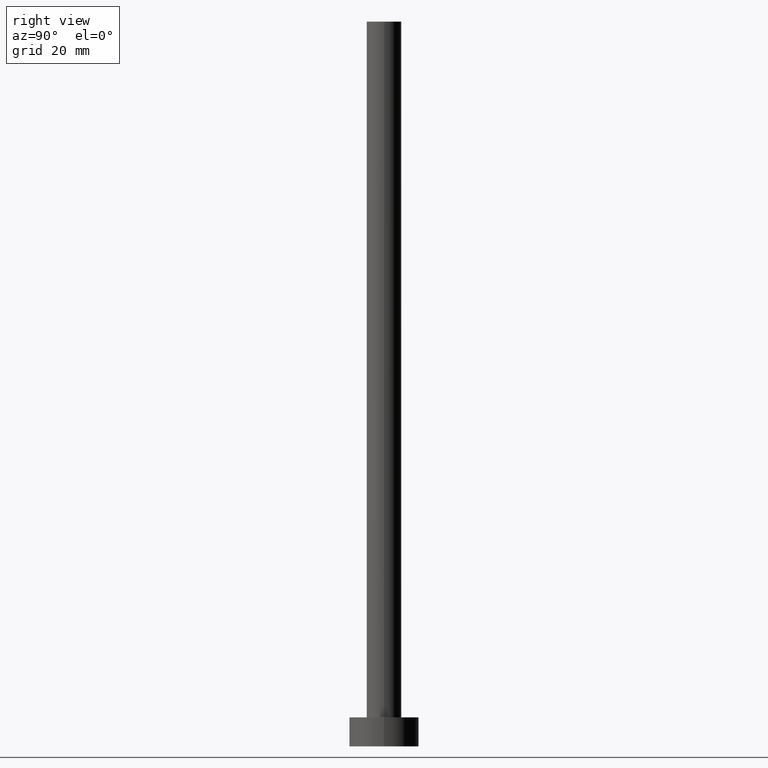
[diagram: clean part render]
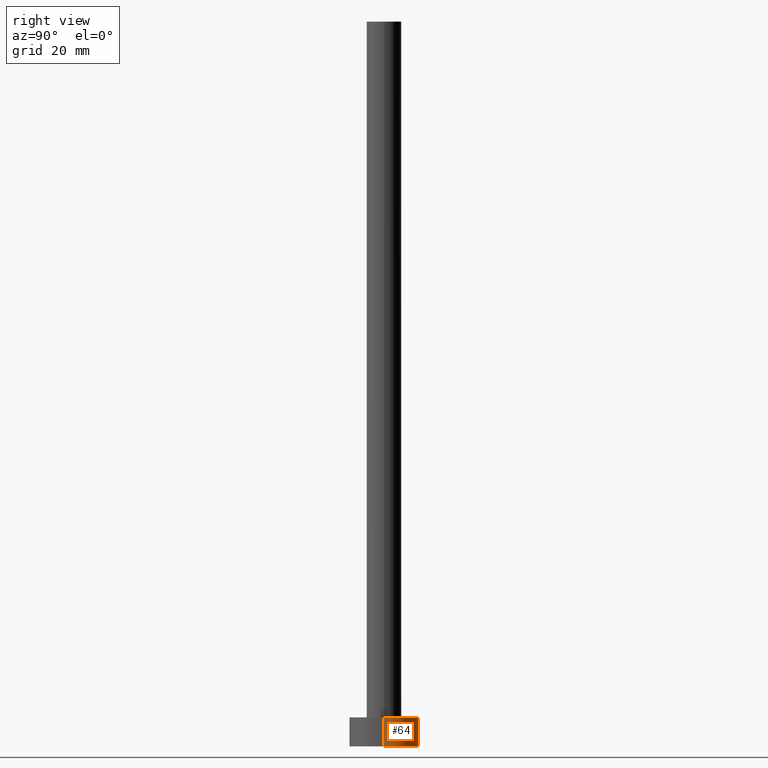
[diagram: same view with one face highlighted and labeled with its STEP entity id]
A machine part, right view. The second image highlights one B-rep face of the part: STEP entity #64.
In plain terms, the highlighted cylindrical surface (edge-blend (fillet) strip) has radius 6 mm, axis along (-0, -0, -1).
Its self-contained STEP definition (entity closure, byte-faithful):
#5 = DIRECTION ( 'NONE',  ( -0.000000000000000000, -0.000000000000000000, -1.000000000000000000 ) ) ;
#8 = CARTESIAN_POINT ( 'NONE',  ( 0.000000000000000000, 0.000000000000000000, 5.000000000000000000 ) ) ;
#31 = LINE ( 'NONE', #102, #188 ) ;
#33 = AXIS2_PLACEMENT_3D ( 'NONE', #8, #5, #84 ) ;
#34 = DIRECTION ( 'NONE',  ( 1.000000000000000000, 0.000000000000000000, 0.000000000000000000 ) ) ;
#56 = CARTESIAN_POINT ( 'NONE',  ( -6.000000000000000888, 0.000000000000000000, 5.000000000000000000 ) ) ;
#64 = ADVANCED_FACE ( 'NONE', ( #185 ), #171, .T. ) ;
#69 = AXIS2_PLACEMENT_3D ( 'NONE', #221, #245, #34 ) ;
#75 = EDGE_CURVE ( 'NONE', #96, #255, #248, .T. ) ;
#77 = ORIENTED_EDGE ( 'NONE', *, *, #110, .T. ) ;
#84 = DIRECTION ( 'NONE',  ( -1.000000000000000000, 0.000000000000000000, 0.000000000000000000 ) ) ;
#92 = DIRECTION ( 'NONE',  ( 1.000000000000000000, 0.000000000000000000, 0.000000000000000000 ) ) ;
#96 = VERTEX_POINT ( 'NONE', #241 ) ;
#98 = VECTOR ( 'NONE', #138, 1000.000000000000000 ) ;
#102 = CARTESIAN_POINT ( 'NONE',  ( 6.000000000000000888, 7.347880794884120722E-16, 5.000000000000000000 ) ) ;
#110 = EDGE_CURVE ( 'NONE', #133, #96, #31, .T. ) ;
#111 = CARTESIAN_POINT ( 'NONE',  ( 0.000000000000000000, 0.000000000000000000, 5.000000000000000000 ) ) ;
#118 = EDGE_CURVE ( 'NONE', #218, #255, #220, .T. ) ;
#133 = VERTEX_POINT ( 'NONE', #210 ) ;
#134 = EDGE_CURVE ( 'NONE', #133, #218, #176, .T. ) ;
#136 = ORIENTED_EDGE ( 'NONE', *, *, #134, .F. ) ;
#137 = ORIENTED_EDGE ( 'NONE', *, *, #118, .F. ) ;
#138 = DIRECTION ( 'NONE',  ( -0.000000000000000000, -0.000000000000000000, -1.000000000000000000 ) ) ;
#153 = DIRECTION ( 'NONE',  ( -0.000000000000000000, -0.000000000000000000, -1.000000000000000000 ) ) ;
#171 = CYLINDRICAL_SURFACE ( 'NONE', #33, 6.000000000000000888 ) ;
#176 = CIRCLE ( 'NONE', #244, 6.000000000000000888 ) ;
#185 = FACE_OUTER_BOUND ( 'NONE', #197, .T. ) ;
#188 = VECTOR ( 'NONE', #153, 1000.000000000000000 ) ;
#190 = DIRECTION ( 'NONE',  ( 0.000000000000000000, 0.000000000000000000, 1.000000000000000000 ) ) ;
#197 = EDGE_LOOP ( 'NONE', ( #136, #77, #233, #137 ) ) ;
#210 = CARTESIAN_POINT ( 'NONE',  ( 6.000000000000000888, 7.347880794884120722E-16, 5.000000000000000000 ) ) ;
#218 = VERTEX_POINT ( 'NONE', #226 ) ;
#220 = LINE ( 'NONE', #56, #98 ) ;
#221 = CARTESIAN_POINT ( 'NONE',  ( 0.000000000000000000, 0.000000000000000000, 0.000000000000000000 ) ) ;
#226 = CARTESIAN_POINT ( 'NONE',  ( -6.000000000000000888, 0.000000000000000000, 5.000000000000000000 ) ) ;
#230 = CARTESIAN_POINT ( 'NONE',  ( -6.000000000000000888, 0.000000000000000000, 0.000000000000000000 ) ) ;
#233 = ORIENTED_EDGE ( 'NONE', *, *, #75, .T. ) ;
#241 = CARTESIAN_POINT ( 'NONE',  ( 6.000000000000000888, 7.347880794884120722E-16, 0.000000000000000000 ) ) ;
#244 = AXIS2_PLACEMENT_3D ( 'NONE', #111, #190, #92 ) ;
#245 = DIRECTION ( 'NONE',  ( 0.000000000000000000, 0.000000000000000000, 1.000000000000000000 ) ) ;
#248 = CIRCLE ( 'NONE', #69, 6.000000000000000888 ) ;
#255 = VERTEX_POINT ( 'NONE', #230 ) ;